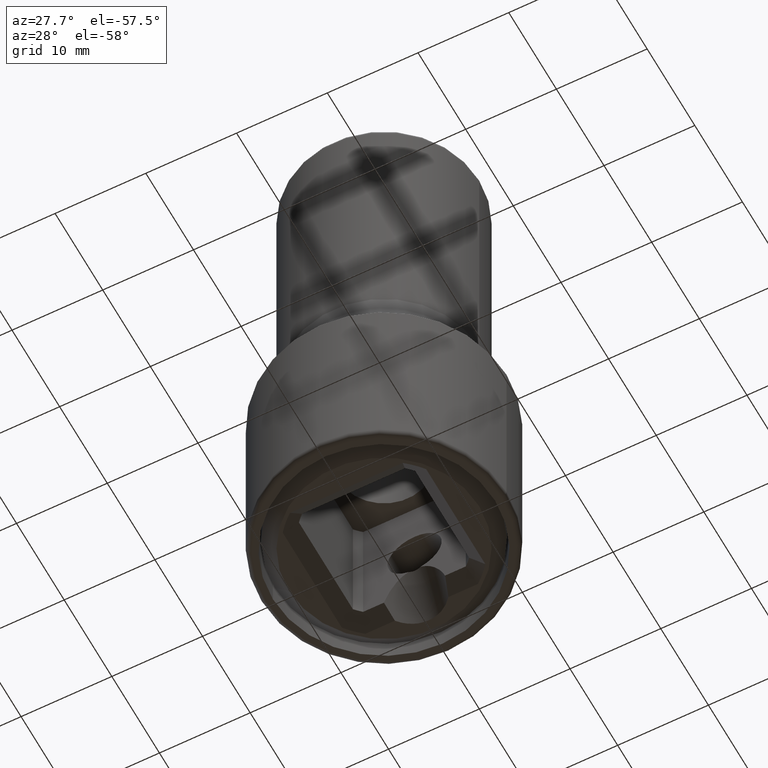
[diagram: clean part render]
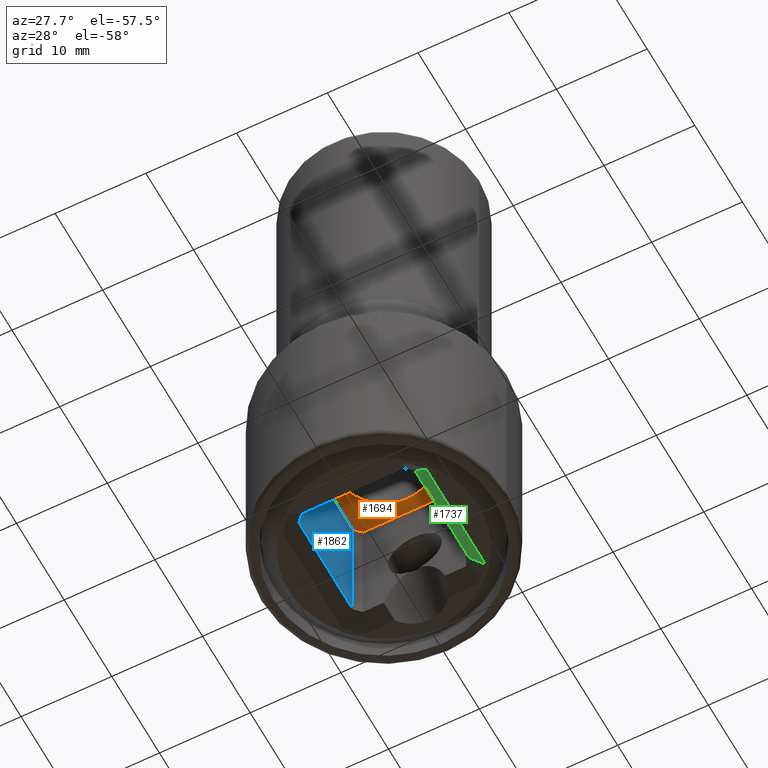
[diagram: same view with three faces highlighted in distinct colors, each labeled with its STEP entity id]
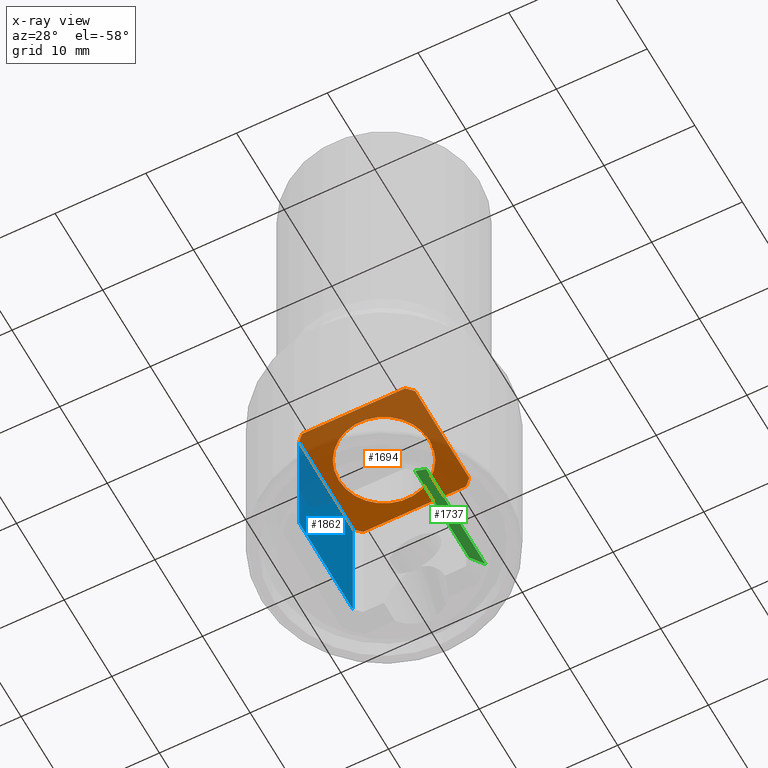
[diagram: x-ray of the same camera — body ghosted, the three highlighted faces saturated]
A machine part, auxiliary view with three faces highlighted in distinct colors.
The next image is the same camera in x-ray (body ghosted, the three faces saturated) — at least one of them is partly hidden behind the body in this view.
Their STEP definitions:

[orange] entity #1694 — the highlighted planar face has unit normal (0, 0, -1).
#677=CARTESIAN_POINT('',(0.E0,0.E0,1.6E1));
#678=DIRECTION('',(0.E0,0.E0,-1.E0));
#679=DIRECTION('',(6.624311435962E-1,7.491228070175E-1,0.E0));
#680=AXIS2_PLACEMENT_3D('',#677,#678,#679);
#682=DIRECTION('',(1.E0,0.E0,0.E0));
#683=VECTOR('',#682,1.132757255549E1);
#684=CARTESIAN_POINT('',(-5.663786277747E0,6.405E0,1.6E1));
#685=LINE('',#684,#683);
#686=CARTESIAN_POINT('',(0.E0,0.E0,1.6E1));
#687=DIRECTION('',(0.E0,0.E0,-1.E0));
#688=DIRECTION('',(-7.491228070175E-1,6.624311435962E-1,0.E0));
#689=AXIS2_PLACEMENT_3D('',#686,#687,#688);
#691=DIRECTION('',(0.E0,1.E0,0.E0));
#692=VECTOR('',#691,1.132757255549E1);
#693=CARTESIAN_POINT('',(-6.405E0,-5.663786277747E0,1.6E1));
#694=LINE('',#693,#692);
#695=CARTESIAN_POINT('',(0.E0,0.E0,1.6E1));
#696=DIRECTION('',(0.E0,0.E0,-1.E0));
#697=DIRECTION('',(-6.624311435962E-1,-7.491228070175E-1,0.E0));
#698=AXIS2_PLACEMENT_3D('',#695,#696,#697);
#700=DIRECTION('',(-1.E0,0.E0,0.E0));
#701=VECTOR('',#700,1.132757255549E1);
#702=CARTESIAN_POINT('',(5.663786277747E0,-6.405E0,1.6E1));
#703=LINE('',#702,#701);
#704=CARTESIAN_POINT('',(0.E0,0.E0,1.6E1));
#705=DIRECTION('',(0.E0,0.E0,-1.E0));
#706=DIRECTION('',(7.491228070175E-1,-6.624311435962E-1,0.E0));
#707=AXIS2_PLACEMENT_3D('',#704,#705,#706);
#709=DIRECTION('',(0.E0,-1.E0,0.E0));
#710=VECTOR('',#709,1.132757255549E1);
#711=CARTESIAN_POINT('',(6.405E0,5.663786277747E0,1.6E1));
#712=LINE('',#711,#710);
#713=CARTESIAN_POINT('',(0.E0,0.E0,1.6E1));
#714=DIRECTION('',(0.E0,0.E0,1.E0));
#715=DIRECTION('',(-1.E0,0.E0,0.E0));
#716=AXIS2_PLACEMENT_3D('',#713,#714,#715);
#718=CARTESIAN_POINT('',(0.E0,0.E0,1.6E1));
#719=DIRECTION('',(0.E0,0.E0,1.E0));
#720=DIRECTION('',(1.E0,0.E0,0.E0));
#721=AXIS2_PLACEMENT_3D('',#718,#719,#720);
#905=CARTESIAN_POINT('',(5.663786277747E0,6.405E0,1.6E1));
#906=CARTESIAN_POINT('',(6.405E0,5.663786277747E0,1.6E1));
#907=VERTEX_POINT('',#905);
#908=VERTEX_POINT('',#906);
#909=CARTESIAN_POINT('',(6.405E0,-5.663786277747E0,1.6E1));
#910=VERTEX_POINT('',#909);
#911=CARTESIAN_POINT('',(5.663786277747E0,-6.405E0,1.6E1));
#912=VERTEX_POINT('',#911);
#913=CARTESIAN_POINT('',(-5.663786277747E0,-6.405E0,1.6E1));
#914=VERTEX_POINT('',#913);
#915=CARTESIAN_POINT('',(-6.405E0,-5.663786277747E0,1.6E1));
#916=VERTEX_POINT('',#915);
#917=CARTESIAN_POINT('',(-6.405E0,5.663786277747E0,1.6E1));
#918=VERTEX_POINT('',#917);
#919=CARTESIAN_POINT('',(-5.663786277747E0,6.405E0,1.6E1));
#920=VERTEX_POINT('',#919);
#1065=CARTESIAN_POINT('',(-5.E0,0.E0,1.6E1));
#1066=CARTESIAN_POINT('',(5.E0,0.E0,1.6E1));
#1067=VERTEX_POINT('',#1065);
#1068=VERTEX_POINT('',#1066);
#1666=CARTESIAN_POINT('',(0.E0,0.E0,1.6E1));
#1667=DIRECTION('',(0.E0,0.E0,-1.E0));
#1668=DIRECTION('',(-1.E0,0.E0,0.E0));
#1669=AXIS2_PLACEMENT_3D('',#1666,#1667,#1668);
#1670=PLANE('',#1669);
#1672=ORIENTED_EDGE('',*,*,#1671,.F.);
#1674=ORIENTED_EDGE('',*,*,#1673,.F.);
#1676=ORIENTED_EDGE('',*,*,#1675,.F.);
#1678=ORIENTED_EDGE('',*,*,#1677,.F.);
#1680=ORIENTED_EDGE('',*,*,#1679,.F.);
#1682=ORIENTED_EDGE('',*,*,#1681,.F.);
#1684=ORIENTED_EDGE('',*,*,#1683,.F.);
#1686=ORIENTED_EDGE('',*,*,#1685,.F.);
#1687=EDGE_LOOP('',(#1672,#1674,#1676,#1678,#1680,#1682,#1684,#1686));
#1688=FACE_OUTER_BOUND('',#1687,.F.);
#1689=ORIENTED_EDGE('',*,*,#1656,.F.);
#1691=ORIENTED_EDGE('',*,*,#1690,.F.);
#1692=EDGE_LOOP('',(#1689,#1691));
#1693=FACE_BOUND('',#1692,.F.);
#1694=ADVANCED_FACE('',(#1688,#1693),#1670,.T.);
#681=CIRCLE('',#680,8.55E0);
#690=CIRCLE('',#689,8.55E0);
#699=CIRCLE('',#698,8.55E0);
#708=CIRCLE('',#707,8.55E0);
#717=CIRCLE('',#716,5.E0);
#722=CIRCLE('',#721,5.E0);
#1656=EDGE_CURVE('',#1067,#1068,#717,.T.);
#1671=EDGE_CURVE('',#907,#908,#681,.T.);
#1673=EDGE_CURVE('',#920,#907,#685,.T.);
#1675=EDGE_CURVE('',#918,#920,#690,.T.);
#1677=EDGE_CURVE('',#916,#918,#694,.T.);
#1679=EDGE_CURVE('',#914,#916,#699,.T.);
#1681=EDGE_CURVE('',#912,#914,#703,.T.);
#1683=EDGE_CURVE('',#910,#912,#708,.T.);
#1685=EDGE_CURVE('',#908,#910,#712,.T.);
#1690=EDGE_CURVE('',#1068,#1067,#722,.T.);

[blue] entity #1862 — the highlighted planar face has unit normal (-1, 0, 0).
#691=DIRECTION('',(0.E0,1.E0,0.E0));
#692=VECTOR('',#691,1.132757255549E1);
#693=CARTESIAN_POINT('',(-6.405E0,-5.663786277747E0,1.6E1));
#694=LINE('',#693,#692);
#812=DIRECTION('',(5.071552355305E-8,-1.E0,5.151708579622E-8));
#813=VECTOR('',#812,1.132757232420E1);
#814=CARTESIAN_POINT('',(-6.404999999971E0,5.663786277736E0,1.500000000029E0));
#815=LINE('',#814,#813);
#816=DIRECTION('',(-3.962154626056E-8,-1.595088680179E-8,1.E0));
#817=VECTOR('',#816,1.449999941641E1);
#818=CARTESIAN_POINT('',(-6.404999425488E0,-5.663786046460E0,1.500000583593E0));
#819=LINE('',#818,#817);
#825=DIRECTION('',(-1.974941283312E-12,7.951953272117E-13,1.E0));
#826=VECTOR('',#825,1.449999999997E1);
#827=CARTESIAN_POINT('',(-6.404999999971E0,5.663786277736E0,1.500000000029E0));
#828=LINE('',#827,#826);
#915=CARTESIAN_POINT('',(-6.405E0,-5.663786277747E0,1.6E1));
#916=VERTEX_POINT('',#915);
#917=CARTESIAN_POINT('',(-6.405E0,5.663786277747E0,1.6E1));
#918=VERTEX_POINT('',#917);
#943=CARTESIAN_POINT('',(-6.405E0,-5.663786277747E0,1.5E0));
#944=VERTEX_POINT('',#943);
#947=CARTESIAN_POINT('',(-6.404999999971E0,5.663786277736E0,1.500000000029E0));
#948=VERTEX_POINT('',#947);
#1850=CARTESIAN_POINT('',(-6.405E0,-5.663786277747E0,0.E0));
#1851=DIRECTION('',(-1.E0,0.E0,0.E0));
#1852=DIRECTION('',(0.E0,1.E0,0.E0));
#1853=AXIS2_PLACEMENT_3D('',#1850,#1851,#1852);
#1854=PLANE('',#1853);
#1855=ORIENTED_EDGE('',*,*,#1843,.T.);
#1856=ORIENTED_EDGE('',*,*,#1818,.T.);
#1857=ORIENTED_EDGE('',*,*,#1677,.T.);
#1859=ORIENTED_EDGE('',*,*,#1858,.F.);
#1860=EDGE_LOOP('',(#1855,#1856,#1857,#1859));
#1861=FACE_OUTER_BOUND('',#1860,.F.);
#1862=ADVANCED_FACE('',(#1861),#1854,.F.);
#1677=EDGE_CURVE('',#916,#918,#694,.T.);
#1818=EDGE_CURVE('',#944,#916,#819,.T.);
#1843=EDGE_CURVE('',#948,#944,#815,.T.);
#1858=EDGE_CURVE('',#948,#918,#828,.T.);

[green] entity #1737 — the highlighted planar face has unit normal (-0.7071, 0, -0.7071).
#52=DIRECTION('',(0.E0,1.E0,0.E0));
#53=VECTOR('',#52,1.241184514889E1);
#54=CARTESIAN_POINT('',(7.905E0,-6.205922574445E0,0.E0));
#55=LINE('',#54,#53);
#738=CARTESIAN_POINT('',(6.404999425489E0,5.663786046458E0,1.500000583593E0));
#739=CARTESIAN_POINT('',(6.638133122011E0,5.752078899990E0,1.266866887071E0));
#740=CARTESIAN_POINT('',(7.121233207725E0,5.930906521759E0,7.837667877348E-1));
#741=CARTESIAN_POINT('',(7.638102921954E0,6.113672916873E0,2.668970780457E-1));
#742=CARTESIAN_POINT('',(7.905E0,6.205922574445E0,0.E0));
#744=DIRECTION('',(-5.071543110939E-8,1.E0,5.151708567861E-8));
#745=VECTOR('',#744,1.132757232419E1);
#746=CARTESIAN_POINT('',(6.404999999971E0,-5.663786277736E0,1.500000000029E0));
#747=LINE('',#746,#745);
#761=CARTESIAN_POINT('',(6.404999999971E0,-5.663786277736E0,1.500000000029E0));
#762=CARTESIAN_POINT('',(6.638315629994E0,-5.752148020545E0,1.266684370007E0));
#763=CARTESIAN_POINT('',(7.121597925408E0,-5.931038302021E0,7.834020745914E-1));
#764=CARTESIAN_POINT('',(7.638285881210E0,-6.113736154466E0,2.667141187895E-1));
#765=CARTESIAN_POINT('',(7.905E0,-6.205922574445E0,0.E0));
#921=CARTESIAN_POINT('',(6.405E0,5.663786277747E0,1.5E0));
#923=VERTEX_POINT('',#921);
#925=CARTESIAN_POINT('',(7.905E0,6.205922574445E0,0.E0));
#927=VERTEX_POINT('',#925);
#929=CARTESIAN_POINT('',(7.905E0,-6.205922574445E0,0.E0));
#930=VERTEX_POINT('',#929);
#931=CARTESIAN_POINT('',(6.404999999971E0,-5.663786277736E0,1.500000000029E0));
#932=VERTEX_POINT('',#931);
#1724=CARTESIAN_POINT('',(7.155E0,0.E0,7.5E-1));
#1725=DIRECTION('',(-7.071067811865E-1,0.E0,-7.071067811865E-1));
#1726=DIRECTION('',(-7.071067811865E-1,0.E0,7.071067811865E-1));
#1727=AXIS2_PLACEMENT_3D('',#1724,#1725,#1726);
#1728=PLANE('',#1727);
#1729=ORIENTED_EDGE('',*,*,#1090,.T.);
#1730=ORIENTED_EDGE('',*,*,#1716,.F.);
#1732=ORIENTED_EDGE('',*,*,#1731,.F.);
#1734=ORIENTED_EDGE('',*,*,#1733,.T.);
#1735=EDGE_LOOP('',(#1729,#1730,#1732,#1734));
#1736=FACE_OUTER_BOUND('',#1735,.F.);
#1737=ADVANCED_FACE('',(#1736),#1728,.T.);
#743=B_SPLINE_CURVE_WITH_KNOTS('',3,(#738,#739,#740,#741,#742),.UNSPECIFIED.,
.F.,.F.,(4,1,4),(0.E0,5.E-1,1.E0),.UNSPECIFIED.);
#766=B_SPLINE_CURVE_WITH_KNOTS('',3,(#761,#762,#763,#764,#765),.UNSPECIFIED.,
.F.,.F.,(4,1,4),(0.E0,5.E-1,1.E0),.UNSPECIFIED.);
#1090=EDGE_CURVE('',#930,#927,#55,.T.);
#1716=EDGE_CURVE('',#923,#927,#743,.T.);
#1731=EDGE_CURVE('',#932,#923,#747,.T.);
#1733=EDGE_CURVE('',#932,#930,#766,.T.);